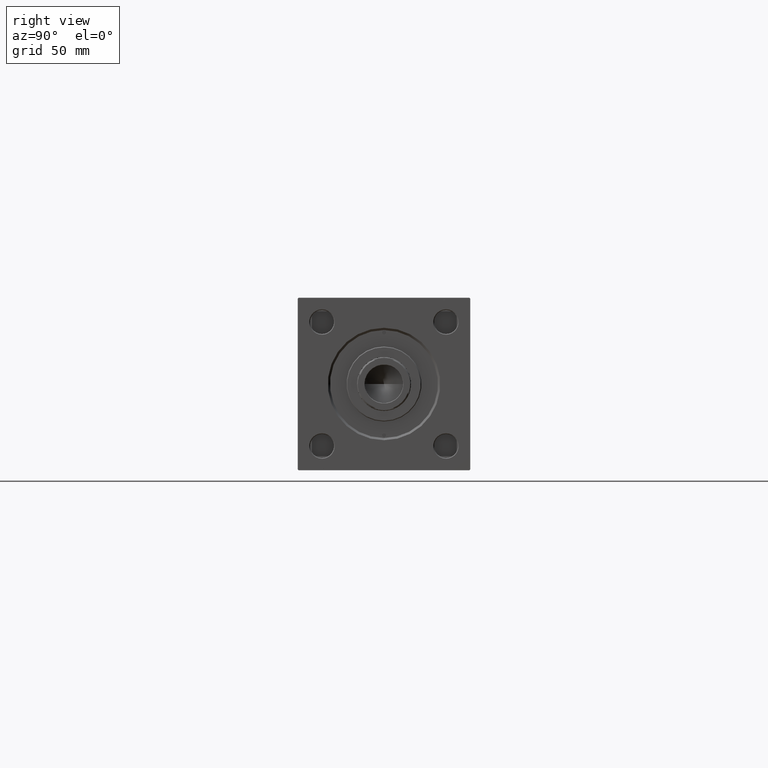
[diagram: clean part render]
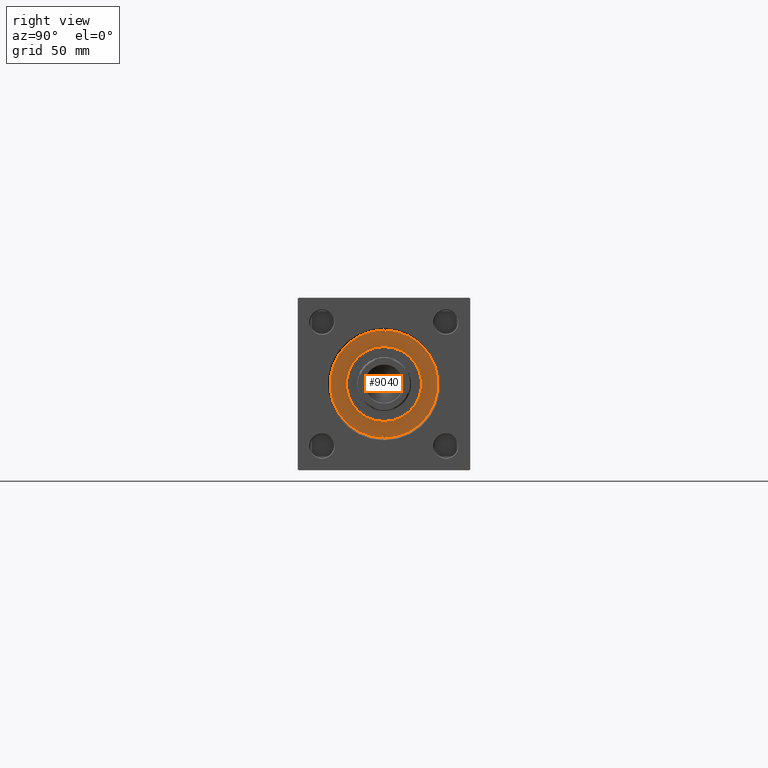
[diagram: same view with one face highlighted and labeled with its STEP entity id]
A machine part, right view. The second image highlights one B-rep face of the part: STEP entity #9040.
In plain terms, the highlighted planar face has unit normal (1, 0, 0).
Its self-contained STEP definition (entity closure, byte-faithful):
#140 = AXIS2_PLACEMENT_3D ( 'NONE', #5296, #672, #24038 ) ;
#672 = DIRECTION ( 'NONE',  ( 0.000000000000000000, 0.000000000000000000, 1.000000000000000000 ) ) ;
#939 = FACE_BOUND ( 'NONE', #11712, .T. ) ;
#1556 = CARTESIAN_POINT ( 'NONE',  ( 0.000000000000000000, 0.000000000000000000, 28.69999999999999929 ) ) ;
#1715 = DIRECTION ( 'NONE',  ( 1.000000000000000000, 0.000000000000000000, 0.000000000000000000 ) ) ;
#2211 = CARTESIAN_POINT ( 'NONE',  ( -33.00000000000000000, 0.000000000000000000, 28.69999999999999929 ) ) ;
#2546 = EDGE_CURVE ( 'NONE', #36481, #27956, #15479, .T. ) ;
#3147 = ORIENTED_EDGE ( 'NONE', *, *, #5278, .F. ) ;
#4507 = CARTESIAN_POINT ( 'NONE',  ( -34.25000000000000000, 0.000000000000000000, 28.69999999999999929 ) ) ;
#4515 = PLANE ( 'NONE',  #140 ) ;
#4712 = EDGE_LOOP ( 'NONE', ( #22892, #9730 ) ) ;
#5278 = EDGE_CURVE ( 'NONE', #13759, #16755, #36873, .T. ) ;
#5296 = CARTESIAN_POINT ( 'NONE',  ( 0.000000000000000000, 0.000000000000000000, 28.69999999999999929 ) ) ;
#7208 = VERTEX_POINT ( 'NONE', #27817 ) ;
#8540 = CARTESIAN_POINT ( 'NONE',  ( 0.000000000000000000, 0.000000000000000000, 28.69999999999999929 ) ) ;
#8728 = EDGE_CURVE ( 'NONE', #16755, #13759, #32942, .T. ) ;
#9040 = ADVANCED_FACE ( 'NONE', ( #12487, #36832, #939, #40214 ), #4515, .T. ) ;
#9531 = CARTESIAN_POINT ( 'NONE',  ( 34.25000000000000000, 0.000000000000000000, 28.69999999999999929 ) ) ;
#9730 = ORIENTED_EDGE ( 'NONE', *, *, #2546, .F. ) ;
#11530 = EDGE_CURVE ( 'NONE', #7208, #27438, #45306, .T. ) ;
#11709 = DIRECTION ( 'NONE',  ( 1.000000000000000000, 0.000000000000000000, 0.000000000000000000 ) ) ;
#11712 = EDGE_LOOP ( 'NONE', ( #19999, #38311 ) ) ;
#12055 = ORIENTED_EDGE ( 'NONE', *, *, #35791, .T. ) ;
#12487 = FACE_BOUND ( 'NONE', #4712, .T. ) ;
#12569 = EDGE_CURVE ( 'NONE', #21816, #30145, #35473, .T. ) ;
#13742 = CARTESIAN_POINT ( 'NONE',  ( 35.50000000000000711, 0.000000000000000000, 28.69999999999999929 ) ) ;
#13759 = VERTEX_POINT ( 'NONE', #47649 ) ;
#13783 = EDGE_LOOP ( 'NONE', ( #47756, #3147 ) ) ;
#14078 = AXIS2_PLACEMENT_3D ( 'NONE', #17129, #28994, #32073 ) ;
#15282 = EDGE_CURVE ( 'NONE', #27438, #7208, #44527, .T. ) ;
#15479 = CIRCLE ( 'NONE', #39284, 1.250000000000001110 ) ;
#16755 = VERTEX_POINT ( 'NONE', #13742 ) ;
#17129 = CARTESIAN_POINT ( 'NONE',  ( 34.25000000000000000, 0.000000000000000000, 28.69999999999999929 ) ) ;
#17472 = DIRECTION ( 'NONE',  ( 0.000000000000000000, 0.000000000000000000, 1.000000000000000000 ) ) ;
#17541 = ORIENTED_EDGE ( 'NONE', *, *, #12569, .T. ) ;
#19145 = AXIS2_PLACEMENT_3D ( 'NONE', #4507, #39177, #11709 ) ;
#19999 = ORIENTED_EDGE ( 'NONE', *, *, #15282, .F. ) ;
#20053 = CARTESIAN_POINT ( 'NONE',  ( -35.50000000000000711, 1.530808498934184175E-16, 28.69999999999999929 ) ) ;
#21816 = VERTEX_POINT ( 'NONE', #32519 ) ;
#22368 = AXIS2_PLACEMENT_3D ( 'NONE', #36999, #33165, #29842 ) ;
#22892 = ORIENTED_EDGE ( 'NONE', *, *, #38925, .F. ) ;
#22984 = AXIS2_PLACEMENT_3D ( 'NONE', #9531, #17472, #44218 ) ;
#24038 = DIRECTION ( 'NONE',  ( 1.000000000000000000, 0.000000000000000000, -0.000000000000000000 ) ) ;
#27438 = VERTEX_POINT ( 'NONE', #32102 ) ;
#27817 = CARTESIAN_POINT ( 'NONE',  ( 25.00000000000000000, 3.061616997868383043E-15, 28.69999999999999929 ) ) ;
#27956 = VERTEX_POINT ( 'NONE', #2211 ) ;
#28938 = AXIS2_PLACEMENT_3D ( 'NONE', #8540, #47842, #44475 ) ;
#28994 = DIRECTION ( 'NONE',  ( 0.000000000000000000, 0.000000000000000000, 1.000000000000000000 ) ) ;
#29283 = DIRECTION ( 'NONE',  ( 0.000000000000000000, 0.000000000000000000, 1.000000000000000000 ) ) ;
#29532 = DIRECTION ( 'NONE',  ( 1.000000000000000000, 0.000000000000000000, 0.000000000000000000 ) ) ;
#29842 = DIRECTION ( 'NONE',  ( 1.000000000000000000, 0.000000000000000000, 0.000000000000000000 ) ) ;
#30145 = VERTEX_POINT ( 'NONE', #48412 ) ;
#32073 = DIRECTION ( 'NONE',  ( 1.000000000000000000, 0.000000000000000000, 0.000000000000000000 ) ) ;
#32102 = CARTESIAN_POINT ( 'NONE',  ( -25.00000000000000000, 0.000000000000000000, 28.69999999999999929 ) ) ;
#32519 = CARTESIAN_POINT ( 'NONE',  ( -36.00000000000000000, 0.000000000000000000, 28.69999999999999929 ) ) ;
#32942 = CIRCLE ( 'NONE', #14078, 1.250000000000001110 ) ;
#33124 = CIRCLE ( 'NONE', #19145, 1.250000000000001110 ) ;
#33165 = DIRECTION ( 'NONE',  ( 0.000000000000000000, 0.000000000000000000, 1.000000000000000000 ) ) ;
#33915 = AXIS2_PLACEMENT_3D ( 'NONE', #48724, #39971, #1715 ) ;
#35473 = CIRCLE ( 'NONE', #22368, 36.00000000000000000 ) ;
#35791 = EDGE_CURVE ( 'NONE', #30145, #21816, #45276, .T. ) ;
#35986 = CARTESIAN_POINT ( 'NONE',  ( -34.25000000000000000, 0.000000000000000000, 28.69999999999999929 ) ) ;
#36237 = DIRECTION ( 'NONE',  ( 1.000000000000000000, 0.000000000000000000, 0.000000000000000000 ) ) ;
#36481 = VERTEX_POINT ( 'NONE', #20053 ) ;
#36832 = FACE_BOUND ( 'NONE', #13783, .T. ) ;
#36873 = CIRCLE ( 'NONE', #22984, 1.250000000000001110 ) ;
#36999 = CARTESIAN_POINT ( 'NONE',  ( 0.000000000000000000, 0.000000000000000000, 28.69999999999999929 ) ) ;
#38311 = ORIENTED_EDGE ( 'NONE', *, *, #11530, .F. ) ;
#38925 = EDGE_CURVE ( 'NONE', #27956, #36481, #33124, .T. ) ;
#39177 = DIRECTION ( 'NONE',  ( 0.000000000000000000, 0.000000000000000000, 1.000000000000000000 ) ) ;
#39284 = AXIS2_PLACEMENT_3D ( 'NONE', #35986, #47851, #36237 ) ;
#39971 = DIRECTION ( 'NONE',  ( 0.000000000000000000, 0.000000000000000000, 1.000000000000000000 ) ) ;
#40214 = FACE_OUTER_BOUND ( 'NONE', #47983, .T. ) ;
#44218 = DIRECTION ( 'NONE',  ( 1.000000000000000000, 0.000000000000000000, 0.000000000000000000 ) ) ;
#44475 = DIRECTION ( 'NONE',  ( 1.000000000000000000, 0.000000000000000000, 0.000000000000000000 ) ) ;
#44527 = CIRCLE ( 'NONE', #49447, 25.00000000000000000 ) ;
#45276 = CIRCLE ( 'NONE', #33915, 36.00000000000000000 ) ;
#45306 = CIRCLE ( 'NONE', #28938, 25.00000000000000000 ) ;
#47649 = CARTESIAN_POINT ( 'NONE',  ( 33.00000000000000000, 1.530808498934184175E-16, 28.69999999999999929 ) ) ;
#47756 = ORIENTED_EDGE ( 'NONE', *, *, #8728, .F. ) ;
#47842 = DIRECTION ( 'NONE',  ( 0.000000000000000000, 0.000000000000000000, 1.000000000000000000 ) ) ;
#47851 = DIRECTION ( 'NONE',  ( 0.000000000000000000, 0.000000000000000000, 1.000000000000000000 ) ) ;
#47983 = EDGE_LOOP ( 'NONE', ( #17541, #12055 ) ) ;
#48412 = CARTESIAN_POINT ( 'NONE',  ( 36.00000000000000000, 4.408728476930470856E-15, 28.69999999999999929 ) ) ;
#48724 = CARTESIAN_POINT ( 'NONE',  ( 0.000000000000000000, 0.000000000000000000, 28.69999999999999929 ) ) ;
#49447 = AXIS2_PLACEMENT_3D ( 'NONE', #1556, #29283, #29532 ) ;